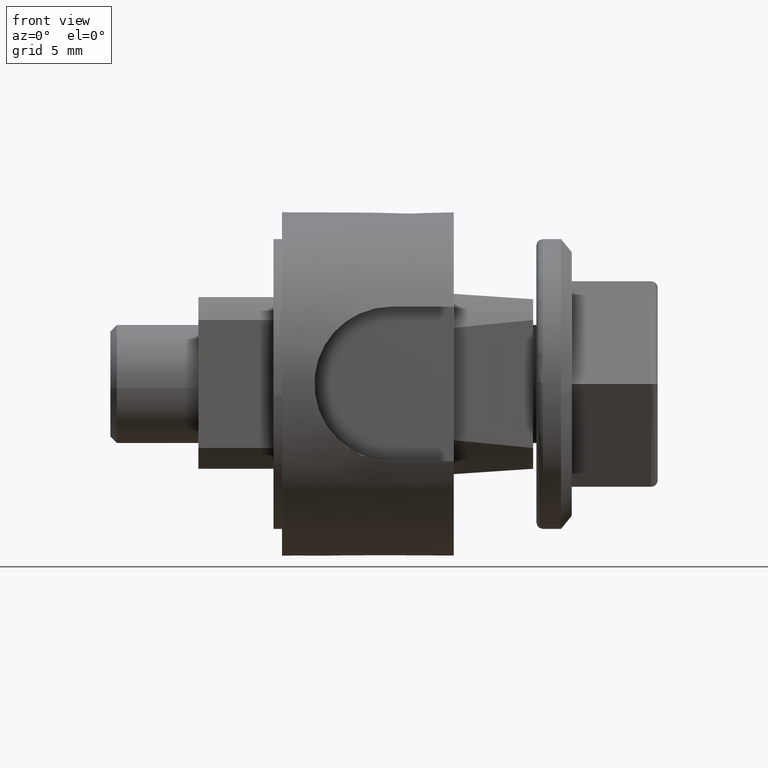
[diagram: clean part render]
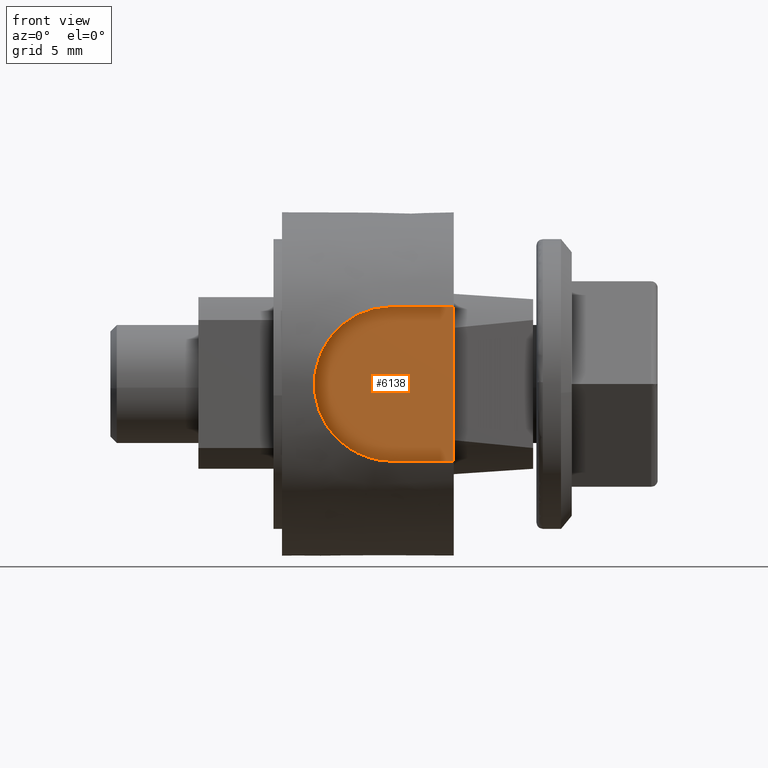
[diagram: same view with one face highlighted and labeled with its STEP entity id]
A machine part, front view. The second image highlights one B-rep face of the part: STEP entity #6138.
In plain terms, the highlighted face is a freeform B-spline surface patch.
Its self-contained STEP definition (entity closure, byte-faithful):
#6091=CARTESIAN_POINT('',(9.175325944374668,-5.500000379979610,3.959637059875213));
#6092=CARTESIAN_POINT('',(16.324676752699990,-5.500000379979610,3.959637059875213));
#6093=CARTESIAN_POINT('',(9.175325944374668,-5.500000379979610,-3.959643481480826));
#6094=CARTESIAN_POINT('',(16.324676752699990,-5.500000379979610,-3.959643481480826));
#6095=B_SPLINE_SURFACE_WITH_KNOTS('',1,1,((#6091,#6093),(#6092,#6094)),.UNSPECIFIED.,.F.,.F.,.U.,(2,2),(2,2),(0.0,7.149350808325321),(0.0,7.919280541356039),.UNSPECIFIED.);
#6096=CARTESIAN_POINT('',(13.100000958354940,-5.500000379979660,3.599990769829465));
#6097=VERTEX_POINT('',#6096);
#6098=CARTESIAN_POINT('',(16.000001096102999,-5.500000379979660,3.599997056748165));
#6099=VERTEX_POINT('',#6098);
#6100=CARTESIAN_POINT('',(13.100000958354940,-5.500000379979660,3.599990769829465));
#6101=CARTESIAN_POINT('',(16.000001096102999,-5.500000379979660,3.599997056748165));
#6102=QUASI_UNIFORM_CURVE('',1,(#6100,#6101),.UNSPECIFIED.,.F.,.U.);
#6103=EDGE_CURVE('',#6097,#6099,#6102,.T.);
#6104=ORIENTED_EDGE('',*,*,#6103,.F.);
#6105=CARTESIAN_POINT('',(13.100000958360400,-5.500000379979660,-3.600003285233370));
#6106=VERTEX_POINT('',#6105);
#6107=CARTESIAN_POINT('',(13.100000958354940,-5.500000379979660,3.599990769829466));
#6108=CARTESIAN_POINT('',(11.021540308335741,-5.500000379979660,3.599992584704665));
#6109=CARTESIAN_POINT('',(9.982309459417357,-5.500000379979660,1.799993163499787));
#6110=CARTESIAN_POINT('',(8.943078610498972,-5.500000379979660,-0.000006257705092));
#6111=CARTESIAN_POINT('',(9.982309459420087,-5.500000379979660,-1.800005678908396));
#6112=CARTESIAN_POINT('',(11.021540308341201,-5.500000379979660,-3.600005100111699));
#6113=CARTESIAN_POINT('',(13.100000958360400,-5.500000379979660,-3.600003285233348));
#6121=(BOUNDED_CURVE()B_SPLINE_CURVE(2,(#6107,#6108,#6109,#6110,#6111,#6112,#6113),.UNSPECIFIED.,.F.,.U.)B_SPLINE_CURVE_WITH_KNOTS((3,2,2,3),(0.0,0.333333333333333,0.666666666666667,1.0),.UNSPECIFIED.)CURVE()GEOMETRIC_REPRESENTATION_ITEM()RATIONAL_B_SPLINE_CURVE((1.0,0.866025258253880,1.0,0.866025258253880,1.0,0.866025258253880,1.0))REPRESENTATION_ITEM(''));
#6122=EDGE_CURVE('',#6097,#6106,#6121,.T.);
#6123=ORIENTED_EDGE('',*,*,#6122,.T.);
#6124=CARTESIAN_POINT('',(16.000001096102999,-5.500000379979610,-3.600003285234720));
#6125=VERTEX_POINT('',#6124);
#6126=CARTESIAN_POINT('',(16.000001096102999,-5.500000379979610,-3.600003285234720));
#6127=CARTESIAN_POINT('',(13.100000958360400,-5.500000379979660,-3.600003285233370));
#6128=QUASI_UNIFORM_CURVE('',1,(#6126,#6127),.UNSPECIFIED.,.F.,.U.);
#6129=EDGE_CURVE('',#6125,#6106,#6128,.T.);
#6130=ORIENTED_EDGE('',*,*,#6129,.F.);
#6131=CARTESIAN_POINT('',(16.000001096102999,-5.500000379979660,3.599997056748165));
#6132=CARTESIAN_POINT('',(16.000001096102999,-5.500000379979610,-3.600003285234720));
#6133=QUASI_UNIFORM_CURVE('',1,(#6131,#6132),.UNSPECIFIED.,.F.,.U.);
#6134=EDGE_CURVE('',#6099,#6125,#6133,.T.);
#6135=ORIENTED_EDGE('',*,*,#6134,.F.);
#6136=EDGE_LOOP('',(#6104,#6123,#6130,#6135));
#6137=FACE_OUTER_BOUND('',#6136,.T.);
#6138=ADVANCED_FACE('',(#6137),#6095,.F.);